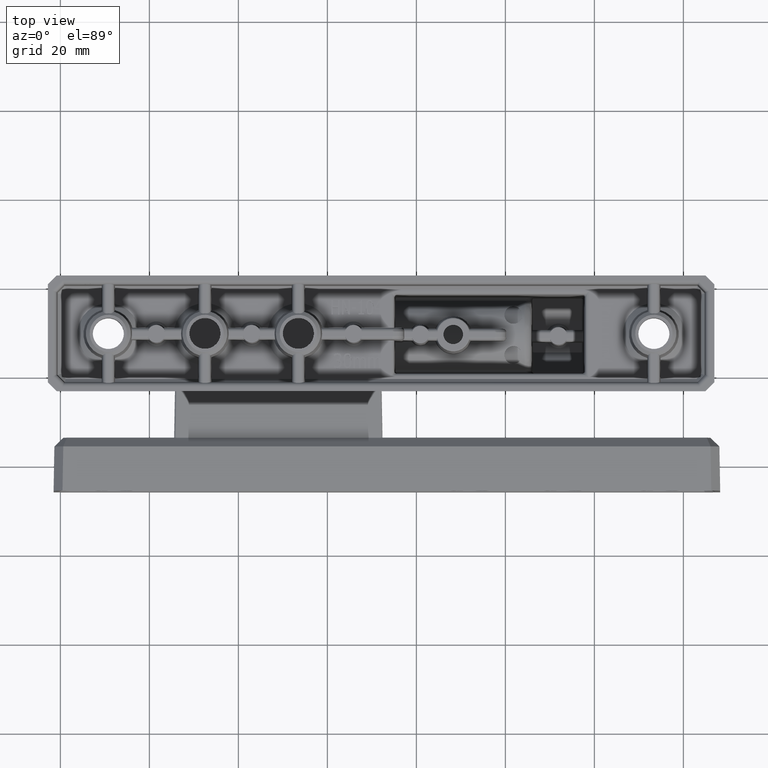
[diagram: clean part render]
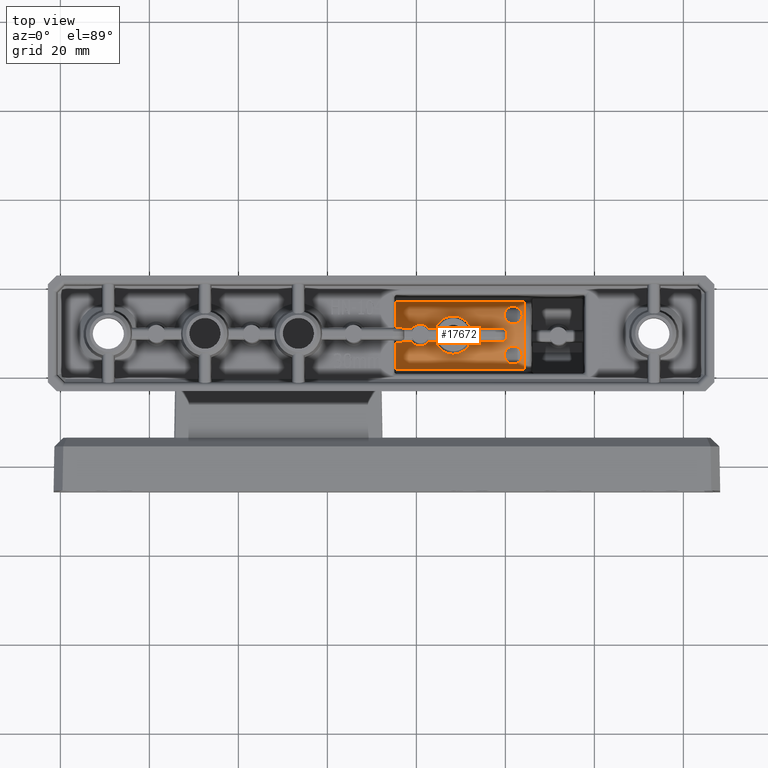
[diagram: same view with one face highlighted and labeled with its STEP entity id]
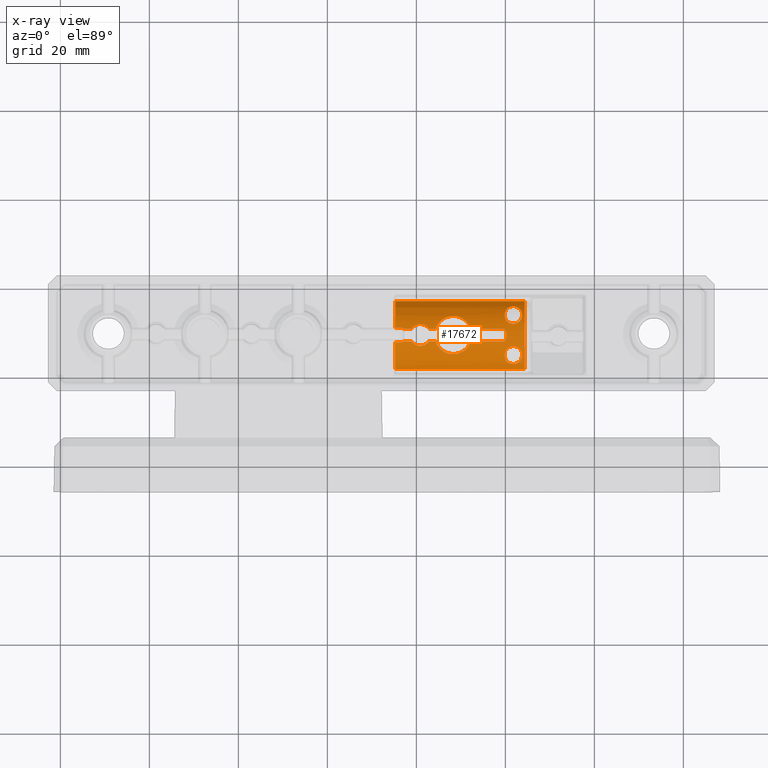
[diagram: x-ray of the same camera — body ghosted, the highlighted face saturated]
A machine part, top view. The second image highlights one B-rep face of the part: STEP entity #17672.
The next image is the same camera in x-ray: the body ghosted, the highlighted face saturated — about 0% of this face is hidden behind the body in this view.
In plain terms, the highlighted cylindrical surface (partial cylindrical patch) has radius 9 mm, axis along (-1, 0, 0).
Its self-contained STEP definition (entity closure, byte-faithful):
#431=ELLIPSE('',#18617,9.00137095239517,9.);
#433=ELLIPSE('',#18621,9.00137095239517,9.);
#464=ELLIPSE('',#18711,9.001974281719,9.);
#465=ELLIPSE('',#18720,9.00095207242852,9.);
#928=LINE('',#25268,#2326);
#932=LINE('',#25289,#2330);
#1255=LINE('',#27645,#2653);
#1256=LINE('',#27672,#2654);
#1261=LINE('',#27706,#2659);
#1262=LINE('',#27738,#2660);
#1271=LINE('',#28342,#2669);
#1274=LINE('',#28348,#2672);
#1275=LINE('',#28350,#2673);
#1276=LINE('',#28351,#2674);
#2326=VECTOR('',#19978,1.3894469183339);
#2330=VECTOR('',#19990,1.38944691717987);
#2653=VECTOR('',#21155,1.4579300833362);
#2654=VECTOR('',#21160,7.14921859827689);
#2659=VECTOR('',#21175,7.1492185982768);
#2660=VECTOR('',#21180,1.457930083337);
#2669=VECTOR('',#21273,1.75956664851199);
#2672=VECTOR('',#21282,1.759566648514);
#2673=VECTOR('',#21285,29.0616565464716);
#2674=VECTOR('',#21286,29.0616565464716);
#3520=B_SPLINE_CURVE_WITH_KNOTS('',3,(#25317,#25318,#25319,#25320,#25321,
#25322),.UNSPECIFIED.,.F.,.F.,(4,2,4),(-2.66453525910055E-15,0.0302174509433277,
0.0568384038589715),.UNSPECIFIED.);
#3521=B_SPLINE_CURVE_WITH_KNOTS('',3,(#25326,#25327,#25328,#25329,#25330,
#25331),.UNSPECIFIED.,.F.,.F.,(4,2,4),(0.185107233504139,0.21182307726583,
0.241942067485916),.UNSPECIFIED.);
#3609=B_SPLINE_CURVE_WITH_KNOTS('',3,(#27603,#27604,#27605,#27606,#27607,
#27608,#27609,#27610,#27611,#27612,#27613,#27614,#27615,#27616,#27617),
 .UNSPECIFIED.,.F.,.F.,(4,2,2,3,2,2,4),(1.25110065265128,1.28902801405133,
1.38123548811876,1.4734429621862,1.56565043625363,1.65785791032107,1.69578527171424),
 .UNSPECIFIED.);
#3611=B_SPLINE_CURVE_WITH_KNOTS('',3,(#27648,#27649,#27650,#27651,#27652,
#27653,#27654,#27655,#27656,#27657,#27658,#27659,#27660,#27661,#27662,#27663,
#27664,#27665,#27666),.UNSPECIFIED.,.F.,.F.,(4,2,2,2,3,2,2,2,4),(-0.51253099643423,
-0.490693187381943,-0.327913070114082,-0.163956535057041,0.,0.163956535057041,
0.327913070114081,0.490693187381942,0.512530996438531),.UNSPECIFIED.);
#3612=B_SPLINE_CURVE_WITH_KNOTS('',3,(#27676,#27677,#27678,#27679,#27680,
#27681,#27682,#27683,#27684,#27685),.UNSPECIFIED.,.F.,.F.,(4,2,2,2,4),(0.120714895899514,
0.150968963720565,0.181258260060343,0.211453062222208,0.241647864384072),
 .UNSPECIFIED.);
#3613=B_SPLINE_CURVE_WITH_KNOTS('',3,(#27693,#27694,#27695,#27696,#27697,
#27698,#27699,#27700,#27701,#27702),.UNSPECIFIED.,.F.,.F.,(4,2,2,2,4),(0.,
0.0301948021618645,0.060389604323729,0.0906789006635065,0.120932968484539),
 .UNSPECIFIED.);
#3614=B_SPLINE_CURVE_WITH_KNOTS('',3,(#27712,#27713,#27714,#27715,#27716,
#27717,#27718,#27719,#27720,#27721,#27722,#27723,#27724,#27725,#27726,#27727,
#27728,#27729),.UNSPECIFIED.,.F.,.F.,(4,2,2,2,2,2,2,2,4),(-1.8194776057381,
-1.79763979668152,-1.63485967941366,-1.47090314435662,-1.30694660929959,
-1.14299007424255,-0.979033539185513,-0.816253421917658,-0.794415612865355),
 .UNSPECIFIED.);
#3615=B_SPLINE_CURVE_WITH_KNOTS('',3,(#27741,#27742,#27743,#27744,#27745,
#27746,#27747,#27748,#27749,#27750,#27751,#27752,#27753,#27754),
 .UNSPECIFIED.,.F.,.F.,(4,2,2,2,2,2,4),(0.514379171565069,0.552306532958232,
0.644514007025665,0.736721481093098,0.828928955160531,0.921136429227964,
0.95906379062788),.UNSPECIFIED.);
#3617=B_SPLINE_CURVE_WITH_KNOTS('',3,(#27811,#27812,#27813,#27814,#27815,
#27816,#27817,#27818,#27819,#27820,#27821,#27822,#27823,#27824,#27825,#27826,
#27827,#27828,#27829,#27830,#27831,#27832,#27833,#27834,#27835,#27836,#27837,
#27838,#27839,#27840,#27841,#27842,#27843,#27844,#27845,#27846,#27847,#27848,
#27849,#27850,#27851,#27852),.UNSPECIFIED.,.T.,.F.,(4,2,2,2,2,2,2,2,2,2,
2,2,2,2,2,2,2,2,2,2,4),(0.,0.0437667209488748,0.0875334418977496,0.198659369678604,
0.321548059326696,0.382992404150742,0.444436748974788,0.498632595308945,
0.552828441643103,0.604490595432124,0.656152749221146,0.707814903010167,
0.759477056799189,0.813672903133346,0.867868749467504,0.92931309429155,
0.990757439115596,1.11364612876369,1.22477205654454,1.26853877749342,1.31230549844229),
 .UNSPECIFIED.);
#3618=B_SPLINE_CURVE_WITH_KNOTS('',3,(#27855,#27856,#27857,#27858,#27859,
#27860,#27861,#27862,#27863,#27864,#27865,#27866,#27867,#27868,#27869,#27870,
#27871,#27872,#27873,#27874,#27875,#27876,#27877,#27878,#27879,#27880,#27881,
#27882,#27883,#27884,#27885,#27886,#27887,#27888,#27889,#27890,#27891,#27892,
#27893,#27894,#27895,#27896),.UNSPECIFIED.,.T.,.F.,(4,2,2,2,2,2,2,2,2,2,
2,2,2,2,2,2,2,2,2,2,4),(0.,0.0516621537889622,0.103324307577924,0.157520153912016,
0.211716000246107,0.273160345070076,0.334604689894046,0.457493379541984,
0.56861930732319,0.61238602827218,0.656152749221171,0.699919470170161,0.743686191119152,
0.854812118900358,0.977700808548296,1.03914515337227,1.10058949819623,1.15478534453033,
1.20898119086442,1.26064334465338,1.31230549844234),.UNSPECIFIED.);
#4444=CYLINDRICAL_SURFACE('',#18761,9.);
#4607=FACE_BOUND('',#6105,.T.);
#4608=FACE_BOUND('',#6106,.T.);
#5114=FACE_OUTER_BOUND('',#6104,.T.);
#6104=EDGE_LOOP('',(#13546,#13547,#13548,#13549,#13550,#13551,#13552,#13553,
#13554,#13555,#13556,#13557,#13558,#13559,#13560,#13561,#13562,#13563,#13564,
#13565,#13566,#13567));
#6105=EDGE_LOOP('',(#13568));
#6106=EDGE_LOOP('',(#13569));
#7233=VERTEX_POINT('',#25265);
#7234=VERTEX_POINT('',#25267);
#7240=VERTEX_POINT('',#25286);
#7241=VERTEX_POINT('',#25288);
#7247=VERTEX_POINT('',#25315);
#7248=VERTEX_POINT('',#25325);
#7596=VERTEX_POINT('',#27155);
#7603=VERTEX_POINT('',#27172);
#7696=VERTEX_POINT('',#27601);
#7697=VERTEX_POINT('',#27602);
#7700=VERTEX_POINT('',#27641);
#7701=VERTEX_POINT('',#27647);
#7702=VERTEX_POINT('',#27671);
#7703=VERTEX_POINT('',#27675);
#7704=VERTEX_POINT('',#27688);
#7705=VERTEX_POINT('',#27692);
#7706=VERTEX_POINT('',#27705);
#7707=VERTEX_POINT('',#27711);
#7708=VERTEX_POINT('',#27734);
#7709=VERTEX_POINT('',#27740);
#7712=VERTEX_POINT('',#27804);
#7713=VERTEX_POINT('',#27806);
#7714=VERTEX_POINT('',#27810);
#7715=VERTEX_POINT('',#27854);
#9066=EDGE_CURVE('',#7234,#7233,#928,.T.);
#9075=EDGE_CURVE('',#7241,#7240,#932,.T.);
#9083=EDGE_CURVE('',#7233,#7247,#3520,.T.);
#9085=EDGE_CURVE('',#7248,#7241,#3521,.T.);
#9617=EDGE_CURVE('',#7240,#7596,#431,.T.);
#9627=EDGE_CURVE('',#7603,#7234,#433,.T.);
#9749=EDGE_CURVE('',#7696,#7697,#3609,.T.);
#9755=EDGE_CURVE('',#7700,#7696,#1255,.T.);
#9756=EDGE_CURVE('',#7700,#7701,#3611,.T.);
#9758=EDGE_CURVE('',#7701,#7702,#1256,.T.);
#9760=EDGE_CURVE('',#7703,#7702,#3612,.T.);
#9762=EDGE_CURVE('',#7703,#7704,#464,.T.);
#9764=EDGE_CURVE('',#7705,#7704,#3613,.T.);
#9766=EDGE_CURVE('',#7705,#7706,#1261,.T.);
#9768=EDGE_CURVE('',#7706,#7707,#3614,.T.);
#9771=EDGE_CURVE('',#7708,#7707,#1262,.T.);
#9772=EDGE_CURVE('',#7709,#7708,#3615,.T.);
#9778=EDGE_CURVE('',#7712,#7713,#465,.T.);
#9779=EDGE_CURVE('',#7714,#7714,#3617,.T.);
#9780=EDGE_CURVE('',#7715,#7715,#3618,.T.);
#9813=EDGE_CURVE('',#7247,#7709,#1271,.T.);
#9816=EDGE_CURVE('',#7697,#7248,#1274,.T.);
#9817=EDGE_CURVE('',#7596,#7712,#1275,.T.);
#9818=EDGE_CURVE('',#7713,#7603,#1276,.T.);
#13546=ORIENTED_EDGE('',*,*,#9817,.T.);
#13547=ORIENTED_EDGE('',*,*,#9778,.T.);
#13548=ORIENTED_EDGE('',*,*,#9818,.T.);
#13549=ORIENTED_EDGE('',*,*,#9627,.T.);
#13550=ORIENTED_EDGE('',*,*,#9066,.T.);
#13551=ORIENTED_EDGE('',*,*,#9083,.T.);
#13552=ORIENTED_EDGE('',*,*,#9813,.T.);
#13553=ORIENTED_EDGE('',*,*,#9772,.T.);
#13554=ORIENTED_EDGE('',*,*,#9771,.T.);
#13555=ORIENTED_EDGE('',*,*,#9768,.F.);
#13556=ORIENTED_EDGE('',*,*,#9766,.F.);
#13557=ORIENTED_EDGE('',*,*,#9764,.T.);
#13558=ORIENTED_EDGE('',*,*,#9762,.F.);
#13559=ORIENTED_EDGE('',*,*,#9760,.T.);
#13560=ORIENTED_EDGE('',*,*,#9758,.F.);
#13561=ORIENTED_EDGE('',*,*,#9756,.F.);
#13562=ORIENTED_EDGE('',*,*,#9755,.T.);
#13563=ORIENTED_EDGE('',*,*,#9749,.T.);
#13564=ORIENTED_EDGE('',*,*,#9816,.T.);
#13565=ORIENTED_EDGE('',*,*,#9085,.T.);
#13566=ORIENTED_EDGE('',*,*,#9075,.T.);
#13567=ORIENTED_EDGE('',*,*,#9617,.T.);
#13568=ORIENTED_EDGE('',*,*,#9780,.T.);
#13569=ORIENTED_EDGE('',*,*,#9779,.T.);
#17672=ADVANCED_FACE('',(#5114,#4607,#4608),#4444,.T.);
#18617=AXIS2_PLACEMENT_3D('',#27157,#20914,#20915);
#18621=AXIS2_PLACEMENT_3D('',#27178,#20930,#20931);
#18711=AXIS2_PLACEMENT_3D('',#27689,#21167,#21168);
#18720=AXIS2_PLACEMENT_3D('',#27808,#21189,#21190);
#18761=AXIS2_PLACEMENT_3D('',#28349,#21283,#21284);
#19978=DIRECTION('',(1.,0.,0.));
#19990=DIRECTION('',(-1.,0.,0.));
#20914=DIRECTION('center_axis',(0.999847695156391,0.,0.0174524064372835));
#20915=DIRECTION('ref_axis',(-0.0174524064372835,0.,0.999847695156391));
#20930=DIRECTION('center_axis',(0.999847695156391,0.,0.0174524064372835));
#20931=DIRECTION('ref_axis',(-0.0174524064372835,0.,0.999847695156391));
#21155=DIRECTION('',(-1.,3.10024467532139E-11,-6.37837723533405E-12));
#21160=DIRECTION('',(1.,0.,0.));
#21167=DIRECTION('center_axis',(-0.999780683474846,-8.80512611398676E-14,
-0.020942419883357));
#21168=DIRECTION('ref_axis',(-0.020942419883357,4.20352330502161E-12,0.999780683474846));
#21175=DIRECTION('',(-1.,0.,0.));
#21180=DIRECTION('',(1.,3.01099613043183E-11,6.24435211672762E-12));
#21189=DIRECTION('center_axis',(-0.999894225364066,1.83493988365345E-16,
-0.0145443488542333));
#21190=DIRECTION('ref_axis',(-0.0145443488542333,-1.27199598990397E-14,
0.999894225364066));
#21273=DIRECTION('',(1.,1.84140502879279E-11,3.35420406149344E-12));
#21282=DIRECTION('',(-1.,1.7049906348678E-11,-3.29615538322456E-12));
#21283=DIRECTION('center_axis',(-1.,0.,0.));
#21284=DIRECTION('ref_axis',(0.,0.,1.));
#21285=DIRECTION('',(1.,0.,0.));
#21286=DIRECTION('',(-1.,0.,0.));
#25265=CARTESIAN_POINT('',(-68.361522539967,-11.3616979931869,-21.1503691300444));
#25267=CARTESIAN_POINT('',(-69.7509694583009,-11.3616979931869,-21.1503691300444));
#25268=CARTESIAN_POINT('',(-69.0033939975729,-11.3616979931869,-21.1503691300444));
#25286=CARTESIAN_POINT('',(-69.7509694583009,-14.6383020068133,-21.1503691300448));
#25288=CARTESIAN_POINT('',(-68.361522541121,-14.6383020068128,-21.1503691300206));
#25289=CARTESIAN_POINT('',(-69.0557615194746,-14.6383020068133,-21.1503691300448));
#25315=CARTESIAN_POINT('',(-67.8226092177042,-11.5719295074725,-21.1140214568983));
#25317=CARTESIAN_POINT('Ctrl Pts',(-68.361522539967,-11.3616979931869,-21.1503691300444));
#25318=CARTESIAN_POINT('Ctrl Pts',(-68.2607977034892,-11.3616979931869,
-21.1503691300444));
#25319=CARTESIAN_POINT('Ctrl Pts',(-68.153540996784,-11.3819691591538,-21.146542226523));
#25320=CARTESIAN_POINT('Ctrl Pts',(-67.9684555821428,-11.4591803340811,
-21.1328006721478));
#25321=CARTESIAN_POINT('Ctrl Pts',(-67.8884950825823,-11.5113104702623,
-21.1237635756702));
#25322=CARTESIAN_POINT('Ctrl Pts',(-67.8226092177037,-11.5719295074728,
-21.1140214569035));
#25325=CARTESIAN_POINT('',(-67.8226092177062,-14.4280704925296,-21.1140214568986));
#25326=CARTESIAN_POINT('Ctrl Pts',(-67.8226092177056,-14.4280704925293,
-21.1140214569041));
#25327=CARTESIAN_POINT('Ctrl Pts',(-67.8886871140209,-14.4888662104404,
-21.1237919701233));
#25328=CARTESIAN_POINT('Ctrl Pts',(-67.9689832475695,-14.5411645922052,
-21.1328604859838));
#25329=CARTESIAN_POINT('Ctrl Pts',(-68.1541950724666,-14.6181616158396,
-21.1465672929401));
#25330=CARTESIAN_POINT('Ctrl Pts',(-68.2611259061037,-14.6383020068133,
-21.1503691300447));
#25331=CARTESIAN_POINT('Ctrl Pts',(-68.3615225399668,-14.6383020068133,
-21.1503691300447));
#27155=CARTESIAN_POINT('',(-69.6790256581894,-20.6580851566477,-25.2720266780028));
#27157=CARTESIAN_POINT('Origin',(-69.5964985768751,-12.9999999999991,-30.0000000000002));
#27172=CARTESIAN_POINT('',(-69.6790256581894,-5.3419148433506,-25.2720266780028));
#27178=CARTESIAN_POINT('Origin',(-69.5964985768751,-12.9999999999991,-30.0000000000002));
#27601=CARTESIAN_POINT('',(-62.1369574307648,-14.4280704925007,-21.1140214568998));
#27602=CARTESIAN_POINT('',(-66.0630425691922,-14.4280704925596,-21.1140214568928));
#27603=CARTESIAN_POINT('Ctrl Pts',(-62.1369574307649,-14.4280704925007,
-21.1140214568995));
#27604=CARTESIAN_POINT('Ctrl Pts',(-62.2128941985099,-14.5344869545705,
-21.1311237049705));
#27605=CARTESIAN_POINT('Ctrl Pts',(-62.2963050361324,-14.6331406842445,
-21.1489482539105));
#27606=CARTESIAN_POINT('Ctrl Pts',(-62.597733099104,-14.9393183411401,-21.2086464091532));
#27607=CARTESIAN_POINT('Ctrl Pts',(-62.8689531200754,-15.1284409807971,
-21.2543338812652));
#27608=CARTESIAN_POINT('Ctrl Pts',(-63.4663277014499,-15.3804288935792,
-21.3195336603859));
#27609=CARTESIAN_POINT('Ctrl Pts',(-63.7926417531089,-15.443193874965,-21.3379676928953));
#27610=CARTESIAN_POINT('Ctrl Pts',(-64.1000000000003,-15.443193874965,-21.3379676928953));
#27611=CARTESIAN_POINT('Ctrl Pts',(-64.4073582468918,-15.443193874965,-21.3379676928953));
#27612=CARTESIAN_POINT('Ctrl Pts',(-64.7336722985508,-15.3804288935792,
-21.3195336603859));
#27613=CARTESIAN_POINT('Ctrl Pts',(-65.3310468799252,-15.1284409807971,
-21.2543338812652));
#27614=CARTESIAN_POINT('Ctrl Pts',(-65.6022669008966,-14.9393183411401,
-21.2086464091532));
#27615=CARTESIAN_POINT('Ctrl Pts',(-65.9036949638523,-14.6331406842607,
-21.1489482539136));
#27616=CARTESIAN_POINT('Ctrl Pts',(-65.9871058014605,-14.5344869546063,
-21.131123704977));
#27617=CARTESIAN_POINT('Ctrl Pts',(-66.0630425691944,-14.4280704925586,
-21.1140214569088));
#27641=CARTESIAN_POINT('',(-60.6790273474286,-14.4280704925459,-21.1140214568905));
#27645=CARTESIAN_POINT('',(-60.6790273474286,-14.4280704925459,-21.1140214568905));
#27647=CARTESIAN_POINT('',(-52.7209726525553,-14.4280704925015,-21.1140214568996));
#27648=CARTESIAN_POINT('Ctrl Pts',(-60.6790273474305,-14.428070492544,-21.1140214569065));
#27649=CARTESIAN_POINT('Ctrl Pts',(-60.6540673491159,-14.5000097080036,
-21.1255828477377));
#27650=CARTESIAN_POINT('Ctrl Pts',(-60.6272214593877,-14.5712719174194,
-21.1379328446857));
#27651=CARTESIAN_POINT('Ctrl Pts',(-60.3849037680404,-15.1666088767756,
-21.2483814576822));
#27652=CARTESIAN_POINT('Ctrl Pts',(-60.0653860382667,-15.6428297575296,
-21.3874709237259));
#27653=CARTESIAN_POINT('Ctrl Pts',(-59.3300476053583,-16.3996602832182,
-21.6570484733833));
#27654=CARTESIAN_POINT('Ctrl Pts',(-58.8612080846096,-16.732881743908,-21.806839814282));
#27655=CARTESIAN_POINT('Ctrl Pts',(-57.8200008988975,-17.1811826410025,
-22.0262932996563));
#27656=CARTESIAN_POINT('Ctrl Pts',(-57.2465217835238,-17.2958814311767,
-22.0914348501602));
#27657=CARTESIAN_POINT('Ctrl Pts',(-56.7000000000003,-17.2958814311767,
-22.0914348501602));
#27658=CARTESIAN_POINT('Ctrl Pts',(-56.1534782164768,-17.2958814311767,
-22.0914348501602));
#27659=CARTESIAN_POINT('Ctrl Pts',(-55.5799991011031,-17.1811826410025,
-22.0262932996563));
#27660=CARTESIAN_POINT('Ctrl Pts',(-54.538791915391,-16.732881743908,-21.806839814282));
#27661=CARTESIAN_POINT('Ctrl Pts',(-54.0699523946423,-16.3996602832182,
-21.6570484733833));
#27662=CARTESIAN_POINT('Ctrl Pts',(-53.334613961734,-15.6428297575296,-21.3874709237259));
#27663=CARTESIAN_POINT('Ctrl Pts',(-53.0150962319602,-15.1666088767756,
-21.2483814576822));
#27664=CARTESIAN_POINT('Ctrl Pts',(-52.7727785406072,-14.5712719174055,
-21.1379328446831));
#27665=CARTESIAN_POINT('Ctrl Pts',(-52.7459326508741,-14.5000097079755,
-21.1255828477328));
#27666=CARTESIAN_POINT('Ctrl Pts',(-52.7209726525553,-14.4280704925015,
-21.1140214568996));
#27671=CARTESIAN_POINT('',(-45.5717540542784,-14.4280704925015,-21.1140214568996));
#27672=CARTESIAN_POINT('',(-53.1785493516955,-14.4280704925015,-21.1140214568996));
#27675=CARTESIAN_POINT('',(-44.7738608689477,-13.6263145842724,-21.0218192242792));
#27676=CARTESIAN_POINT('Ctrl Pts',(-44.7738608689477,-13.6263145842724,
-21.0218192242792));
#27677=CARTESIAN_POINT('Ctrl Pts',(-44.7737138404489,-13.7269324782378,
-21.0288382915049));
#27678=CARTESIAN_POINT('Ctrl Pts',(-44.7935805877454,-13.8341421267736,
-21.038189841311));
#27679=CARTESIAN_POINT('Ctrl Pts',(-44.8746567676443,-14.0315260422309,
-21.0587578408166));
#27680=CARTESIAN_POINT('Ctrl Pts',(-44.9359142944838,-14.1216911247572,
-21.0698834292976));
#27681=CARTESIAN_POINT('Ctrl Pts',(-45.0774091284562,-14.2640457925924,
-21.0889209994544));
#27682=CARTESIAN_POINT('Ctrl Pts',(-45.1670441210434,-14.3258245785353,
-21.0980951134106));
#27683=CARTESIAN_POINT('Ctrl Pts',(-45.3638863643025,-14.4078422724283,
-21.1106973517446));
#27684=CARTESIAN_POINT('Ctrl Pts',(-45.4711047137389,-14.4280704925016,
-21.1140214568996));
#27685=CARTESIAN_POINT('Ctrl Pts',(-45.5717540542784,-14.4280704925016,
-21.1140214568996));
#27688=CARTESIAN_POINT('',(-44.7738608689478,-12.3736854157273,-21.0218192242791));
#27689=CARTESIAN_POINT('Origin',(-44.5857947913553,-12.9999999999991,-30.0000000000002));
#27692=CARTESIAN_POINT('',(-45.5717540542785,-11.5719295074983,-21.1140214568994));
#27693=CARTESIAN_POINT('Ctrl Pts',(-45.5717540542785,-11.5719295074983,
-21.1140214568994));
#27694=CARTESIAN_POINT('Ctrl Pts',(-45.471104713739,-11.5719295074983,-21.1140214568994));
#27695=CARTESIAN_POINT('Ctrl Pts',(-45.3638863643026,-11.5921577275716,
-21.1106973517444));
#27696=CARTESIAN_POINT('Ctrl Pts',(-45.1670441210435,-11.6741754214646,
-21.0980951134103));
#27697=CARTESIAN_POINT('Ctrl Pts',(-45.0774091284563,-11.7359542074075,
-21.0889209994541));
#27698=CARTESIAN_POINT('Ctrl Pts',(-44.9359142944839,-11.8783088752427,
-21.0698834292974));
#27699=CARTESIAN_POINT('Ctrl Pts',(-44.8746567676444,-11.968473957769,-21.0587578408164));
#27700=CARTESIAN_POINT('Ctrl Pts',(-44.7935805877456,-12.1658578732262,
-21.0381898413108));
#27701=CARTESIAN_POINT('Ctrl Pts',(-44.773713840449,-12.2730675217619,-21.0288382915048));
#27702=CARTESIAN_POINT('Ctrl Pts',(-44.7738608689478,-12.3736854157273,
-21.0218192242791));
#27705=CARTESIAN_POINT('',(-52.7209726525553,-11.5719295074983,-21.1140214568994));
#27706=CARTESIAN_POINT('',(-44.7719295074987,-11.5719295074983,-21.1140214568994));
#27711=CARTESIAN_POINT('',(-60.6790273474287,-11.5719295074541,-21.1140214568902));
#27712=CARTESIAN_POINT('Ctrl Pts',(-52.7209726525554,-11.5719295074983,
-21.1140214568994));
#27713=CARTESIAN_POINT('Ctrl Pts',(-52.7459326508742,-11.4999902920243,
-21.1255828477325));
#27714=CARTESIAN_POINT('Ctrl Pts',(-52.7727785406073,-11.4287280825943,
-21.1379328446828));
#27715=CARTESIAN_POINT('Ctrl Pts',(-53.0150962319602,-10.8333911232243,
-21.2483814576818));
#27716=CARTESIAN_POINT('Ctrl Pts',(-53.3346139617339,-10.3571702424702,
-21.3874709237253));
#27717=CARTESIAN_POINT('Ctrl Pts',(-54.0699523946423,-9.60033971678167,
-21.6570484733827));
#27718=CARTESIAN_POINT('Ctrl Pts',(-54.538791915391,-9.26711825609186,-21.8068398142812));
#27719=CARTESIAN_POINT('Ctrl Pts',(-55.5799991011032,-8.81881735899738,
-22.0262932996554));
#27720=CARTESIAN_POINT('Ctrl Pts',(-56.1534782164768,-8.70411856882315,
-22.0914348501593));
#27721=CARTESIAN_POINT('Ctrl Pts',(-57.2465217835238,-8.70411856882315,
-22.0914348501593));
#27722=CARTESIAN_POINT('Ctrl Pts',(-57.8200008988974,-8.81881735899738,
-22.0262932996554));
#27723=CARTESIAN_POINT('Ctrl Pts',(-58.8612080846096,-9.26711825609186,
-21.8068398142812));
#27724=CARTESIAN_POINT('Ctrl Pts',(-59.3300476053583,-9.60033971678167,
-21.6570484733826));
#27725=CARTESIAN_POINT('Ctrl Pts',(-60.0653860382667,-10.3571702424702,
-21.3874709237253));
#27726=CARTESIAN_POINT('Ctrl Pts',(-60.3849037680404,-10.8333911232243,
-21.2483814576818));
#27727=CARTESIAN_POINT('Ctrl Pts',(-60.6272214593877,-11.4287280825805,
-21.1379328446854));
#27728=CARTESIAN_POINT('Ctrl Pts',(-60.6540673491159,-11.4999902919963,
-21.1255828477374));
#27729=CARTESIAN_POINT('Ctrl Pts',(-60.6790273474306,-11.571929507456,-21.1140214569062));
#27734=CARTESIAN_POINT('',(-62.1369574307657,-11.571929507498,-21.1140214568993));
#27738=CARTESIAN_POINT('',(-62.1369574307657,-11.571929507498,-21.1140214568993));
#27740=CARTESIAN_POINT('',(-66.0630425691922,-11.5719295074401,-21.1140214568924));
#27741=CARTESIAN_POINT('Ctrl Pts',(-66.0630425691944,-11.5719295074412,
-21.1140214569085));
#27742=CARTESIAN_POINT('Ctrl Pts',(-65.9871058014605,-11.4655130453935,
-21.1311237049767));
#27743=CARTESIAN_POINT('Ctrl Pts',(-65.9036949638523,-11.3668593157391,
-21.1489482539133));
#27744=CARTESIAN_POINT('Ctrl Pts',(-65.6022669008966,-11.0606816588597,
-21.2086464091528));
#27745=CARTESIAN_POINT('Ctrl Pts',(-65.3310468799252,-10.8715590192027,
-21.2543338812648));
#27746=CARTESIAN_POINT('Ctrl Pts',(-64.7336722985508,-10.6195711064206,
-21.3195336603855));
#27747=CARTESIAN_POINT('Ctrl Pts',(-64.4073582468918,-10.5568061250348,
-21.3379676928949));
#27748=CARTESIAN_POINT('Ctrl Pts',(-63.7926417531089,-10.5568061250348,
-21.3379676928949));
#27749=CARTESIAN_POINT('Ctrl Pts',(-63.4663277014499,-10.6195711064206,
-21.3195336603855));
#27750=CARTESIAN_POINT('Ctrl Pts',(-62.8689531200754,-10.8715590192027,
-21.2543338812648));
#27751=CARTESIAN_POINT('Ctrl Pts',(-62.597733099104,-11.0606816588597,-21.2086464091528));
#27752=CARTESIAN_POINT('Ctrl Pts',(-62.2963050361327,-11.366859315755,-21.1489482539102));
#27753=CARTESIAN_POINT('Ctrl Pts',(-62.2128941985105,-11.4655130454287,
-21.1311237049704));
#27754=CARTESIAN_POINT('Ctrl Pts',(-62.1369574307657,-11.571929507498,-21.1140214568994));
#27804=CARTESIAN_POINT('',(-40.6173691117178,-20.6580851566477,-25.2720266780028));
#27806=CARTESIAN_POINT('',(-40.6173691117178,-5.34191484335059,-25.2720266780028));
#27808=CARTESIAN_POINT('Origin',(-40.5485965439559,-12.9999999999991,-30.0000000000002));
#27810=CARTESIAN_POINT('',(-41.2000000000004,-8.49999999999989,-22.2057713659398));
#27811=CARTESIAN_POINT('Ctrl Pts',(-43.2000000000004,-6.49999999999989,
-23.775050201005));
#27812=CARTESIAN_POINT('Ctrl Pts',(-43.0541109301708,-6.49999999999989,
-23.775050201005));
#27813=CARTESIAN_POINT('Ctrl Pts',(-42.8972094578631,-6.5171262752044,-23.7570189924083));
#27814=CARTESIAN_POINT('Ctrl Pts',(-42.5987367359155,-6.58637700139686,
-23.6858964628653));
#27815=CARTESIAN_POINT('Ctrl Pts',(-42.4570021585882,-6.63828179438739,
-23.6332777340927));
#27816=CARTESIAN_POINT('Ctrl Pts',(-42.0283139408731,-6.84366226339281,
-23.4317334909376));
#27817=CARTESIAN_POINT('Ctrl Pts',(-41.7436478144854,-7.09477780816845,
-23.2004550248799));
#27818=CARTESIAN_POINT('Ctrl Pts',(-41.3684173894751,-7.62694300788593,
-22.7709456054711));
#27819=CARTESIAN_POINT('Ctrl Pts',(-41.2371012256393,-7.97076148101164,
-22.5242070685055));
#27820=CARTESIAN_POINT('Ctrl Pts',(-41.1917648123305,-8.51605107387672,
-22.1936319438613));
#27821=CARTESIAN_POINT('Ctrl Pts',(-41.2014780849184,-8.70264877598939,
-22.0895394280667));
#27822=CARTESIAN_POINT('Ctrl Pts',(-41.2738683111976,-9.07007003173238,
-21.9007184053846));
#27823=CARTESIAN_POINT('Ctrl Pts',(-41.3364826781194,-9.2508937206231,-21.8159661731047));
#27824=CARTESIAN_POINT('Ctrl Pts',(-41.5020736273239,-9.57026725436736,
-21.6775276458412));
#27825=CARTESIAN_POINT('Ctrl Pts',(-41.6080022224658,-9.72514667377337,
-21.6156727308983));
#27826=CARTESIAN_POINT('Ctrl Pts',(-41.8645846492878,-10.0007022539122,
-21.5131972440623));
#27827=CARTESIAN_POINT('Ctrl Pts',(-42.0153207138225,-10.1211952588793,
-21.4722903645001));
#27828=CARTESIAN_POINT('Ctrl Pts',(-42.313388588401,-10.3007667828521,-21.413811395527));
#27829=CARTESIAN_POINT('Ctrl Pts',(-42.4840515208036,-10.376645440612,-21.3906612541798));
#27830=CARTESIAN_POINT('Ctrl Pts',(-42.8412551403008,-10.476279970985,-21.3609294515861));
#27831=CARTESIAN_POINT('Ctrl Pts',(-43.0277928207037,-10.4999999999999,
-21.3541917671047));
#27832=CARTESIAN_POINT('Ctrl Pts',(-43.3722071792971,-10.4999999999999,
-21.3541917671047));
#27833=CARTESIAN_POINT('Ctrl Pts',(-43.5587448597,-10.476279970985,-21.3609294515861));
#27834=CARTESIAN_POINT('Ctrl Pts',(-43.9159484791972,-10.376645440612,-21.3906612541798));
#27835=CARTESIAN_POINT('Ctrl Pts',(-44.0866114115998,-10.3007667828521,
-21.413811395527));
#27836=CARTESIAN_POINT('Ctrl Pts',(-44.3846792861783,-10.1211952588793,
-21.4722903645001));
#27837=CARTESIAN_POINT('Ctrl Pts',(-44.535415350713,-10.0007022539122,-21.5131972440623));
#27838=CARTESIAN_POINT('Ctrl Pts',(-44.791997777535,-9.72514667377337,-21.6156727308983));
#27839=CARTESIAN_POINT('Ctrl Pts',(-44.8979263726769,-9.57026725436736,
-21.6775276458412));
#27840=CARTESIAN_POINT('Ctrl Pts',(-45.0635173218814,-9.2508937206231,-21.8159661731047));
#27841=CARTESIAN_POINT('Ctrl Pts',(-45.1261316888032,-9.07007003173238,
-21.9007184053846));
#27842=CARTESIAN_POINT('Ctrl Pts',(-45.1985219150825,-8.70264877598939,
-22.0895394280667));
#27843=CARTESIAN_POINT('Ctrl Pts',(-45.2082351876703,-8.51605107387672,
-22.1936319438613));
#27844=CARTESIAN_POINT('Ctrl Pts',(-45.1628987743615,-7.97076148101164,
-22.5242070685055));
#27845=CARTESIAN_POINT('Ctrl Pts',(-45.0315826105257,-7.62694300788593,
-22.7709456054711));
#27846=CARTESIAN_POINT('Ctrl Pts',(-44.6563521855154,-7.09477780816845,
-23.2004550248799));
#27847=CARTESIAN_POINT('Ctrl Pts',(-44.3716860591277,-6.84366226339281,
-23.4317334909376));
#27848=CARTESIAN_POINT('Ctrl Pts',(-43.9429978414126,-6.63828179438739,
-23.6332777340927));
#27849=CARTESIAN_POINT('Ctrl Pts',(-43.8012632640853,-6.58637700139686,
-23.6858964628653));
#27850=CARTESIAN_POINT('Ctrl Pts',(-43.5027905421377,-6.5171262752044,-23.7570189924083));
#27851=CARTESIAN_POINT('Ctrl Pts',(-43.34588906983,-6.49999999999989,-23.775050201005));
#27852=CARTESIAN_POINT('Ctrl Pts',(-43.2000000000004,-6.49999999999989,
-23.775050201005));
#27854=CARTESIAN_POINT('',(-41.2000000000003,-17.4999999999999,-22.2057713659407));
#27855=CARTESIAN_POINT('Ctrl Pts',(-43.2000000000003,-15.4999999999999,
-21.3541917671051));
#27856=CARTESIAN_POINT('Ctrl Pts',(-43.0277928207038,-15.4999999999999,
-21.3541917671051));
#27857=CARTESIAN_POINT('Ctrl Pts',(-42.8412551403011,-15.5237200290147,
-21.3609294515866));
#27858=CARTESIAN_POINT('Ctrl Pts',(-42.4840515208042,-15.6233545593875,
-21.3906612541802));
#27859=CARTESIAN_POINT('Ctrl Pts',(-42.3133885884018,-15.6992332171472,
-21.4138113955274));
#27860=CARTESIAN_POINT('Ctrl Pts',(-42.0153207138236,-15.8788047411197,
-21.4722903645003));
#27861=CARTESIAN_POINT('Ctrl Pts',(-41.8645846492889,-15.9992977460865,
-21.5131972440625));
#27862=CARTESIAN_POINT('Ctrl Pts',(-41.608002222467,-16.2748533262248,-21.6156727308983));
#27863=CARTESIAN_POINT('Ctrl Pts',(-41.5020736273251,-16.4297327456305,
-21.6775276458411));
#27864=CARTESIAN_POINT('Ctrl Pts',(-41.3364826781204,-16.7491062793742,
-21.8159661731043));
#27865=CARTESIAN_POINT('Ctrl Pts',(-41.2738683111983,-16.9299299682646,
-21.9007184053841));
#27866=CARTESIAN_POINT('Ctrl Pts',(-41.2014780849186,-17.2973512240072,
-22.0895394280658));
#27867=CARTESIAN_POINT('Ctrl Pts',(-41.1917648123304,-17.4839489261196,
-22.1936319438602));
#27868=CARTESIAN_POINT('Ctrl Pts',(-41.2371012256382,-18.0292385189842,
-22.524207068504));
#27869=CARTESIAN_POINT('Ctrl Pts',(-41.3684173894732,-18.3730569921098,
-22.7709456054693));
#27870=CARTESIAN_POINT('Ctrl Pts',(-41.7436478144824,-18.9052221918285,
-23.2004550248788));
#27871=CARTESIAN_POINT('Ctrl Pts',(-42.0283139408703,-19.1563377366053,
-23.4317334909375));
#27872=CARTESIAN_POINT('Ctrl Pts',(-42.4570021585864,-19.3617182056117,
-23.6332777340937));
#27873=CARTESIAN_POINT('Ctrl Pts',(-42.5987367359139,-19.4136229986025,
-23.6858964628665));
#27874=CARTESIAN_POINT('Ctrl Pts',(-42.8972094578622,-19.4828737247953,
-23.7570189924099));
#27875=CARTESIAN_POINT('Ctrl Pts',(-43.0541109301703,-19.4999999999999,
-23.7750502010067));
#27876=CARTESIAN_POINT('Ctrl Pts',(-43.3458890698303,-19.4999999999999,
-23.7750502010067));
#27877=CARTESIAN_POINT('Ctrl Pts',(-43.5027905421384,-19.4828737247953,
-23.7570189924099));
#27878=CARTESIAN_POINT('Ctrl Pts',(-43.8012632640867,-19.4136229986025,
-23.6858964628665));
#27879=CARTESIAN_POINT('Ctrl Pts',(-43.9429978414142,-19.3617182056117,
-23.6332777340937));
#27880=CARTESIAN_POINT('Ctrl Pts',(-44.3716860591303,-19.1563377366053,
-23.4317334909375));
#27881=CARTESIAN_POINT('Ctrl Pts',(-44.6563521855182,-18.9052221918285,
-23.2004550248788));
#27882=CARTESIAN_POINT('Ctrl Pts',(-45.0315826105274,-18.3730569921098,
-22.7709456054693));
#27883=CARTESIAN_POINT('Ctrl Pts',(-45.1628987743624,-18.0292385189842,
-22.524207068504));
#27884=CARTESIAN_POINT('Ctrl Pts',(-45.2082351876702,-17.4839489261196,
-22.1936319438602));
#27885=CARTESIAN_POINT('Ctrl Pts',(-45.198521915082,-17.2973512240072,-22.0895394280658));
#27886=CARTESIAN_POINT('Ctrl Pts',(-45.1261316888023,-16.9299299682646,
-21.9007184053841));
#27887=CARTESIAN_POINT('Ctrl Pts',(-45.0635173218802,-16.7491062793742,
-21.8159661731043));
#27888=CARTESIAN_POINT('Ctrl Pts',(-44.8979263726755,-16.4297327456305,
-21.6775276458411));
#27889=CARTESIAN_POINT('Ctrl Pts',(-44.7919977775337,-16.2748533262248,
-21.6156727308983));
#27890=CARTESIAN_POINT('Ctrl Pts',(-44.5354153507117,-15.9992977460865,
-21.5131972440625));
#27891=CARTESIAN_POINT('Ctrl Pts',(-44.384679286177,-15.8788047411197,-21.4722903645003));
#27892=CARTESIAN_POINT('Ctrl Pts',(-44.0866114115988,-15.6992332171472,
-21.4138113955274));
#27893=CARTESIAN_POINT('Ctrl Pts',(-43.9159484791964,-15.6233545593875,
-21.3906612541802));
#27894=CARTESIAN_POINT('Ctrl Pts',(-43.5587448596995,-15.5237200290147,
-21.3609294515866));
#27895=CARTESIAN_POINT('Ctrl Pts',(-43.3722071792968,-15.4999999999999,
-21.3541917671051));
#27896=CARTESIAN_POINT('Ctrl Pts',(-43.2000000000003,-15.4999999999999,
-21.3541917671051));
#28342=CARTESIAN_POINT('',(-67.8226092177042,-11.5719295074725,-21.1140214568983));
#28348=CARTESIAN_POINT('',(-66.0630425691922,-14.4280704925596,-21.1140214568928));
#28349=CARTESIAN_POINT('Origin',(-37.7659768757282,-12.9999999999991,-30.0000000000002));
#28350=CARTESIAN_POINT('',(-37.7659768757282,-20.6580851566477,-25.2720266780028));
#28351=CARTESIAN_POINT('',(-37.7659768757282,-5.34191484335059,-25.2720266780028));